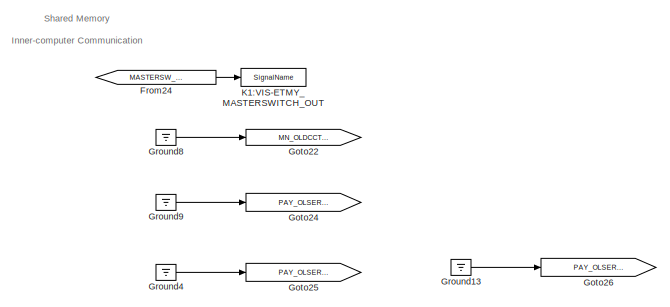
[diagram: root canvas - part 1/5, top center region]
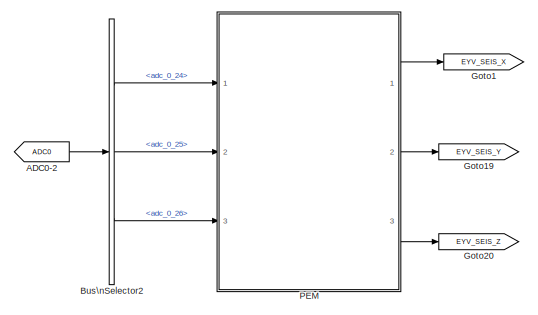
[diagram: root canvas - part 2/5, top left region]
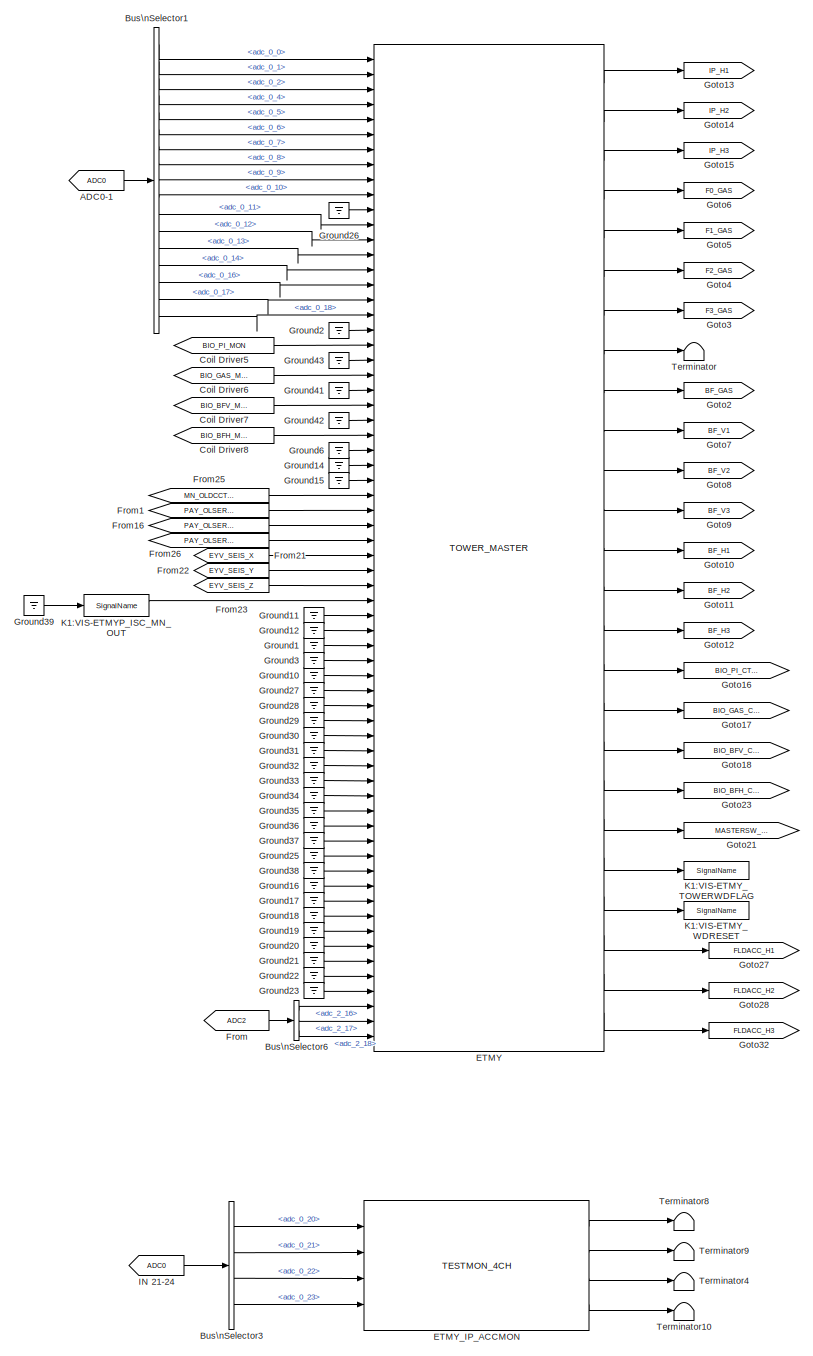
[diagram: root canvas - part 3/5, central region]
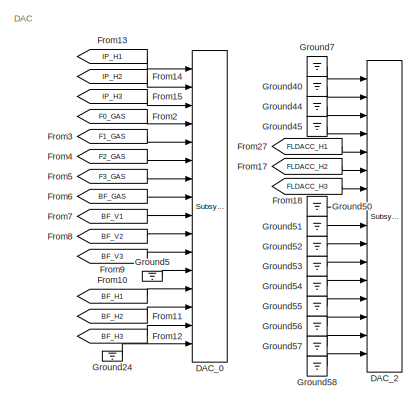
[diagram: root canvas - part 4/5, top right region]
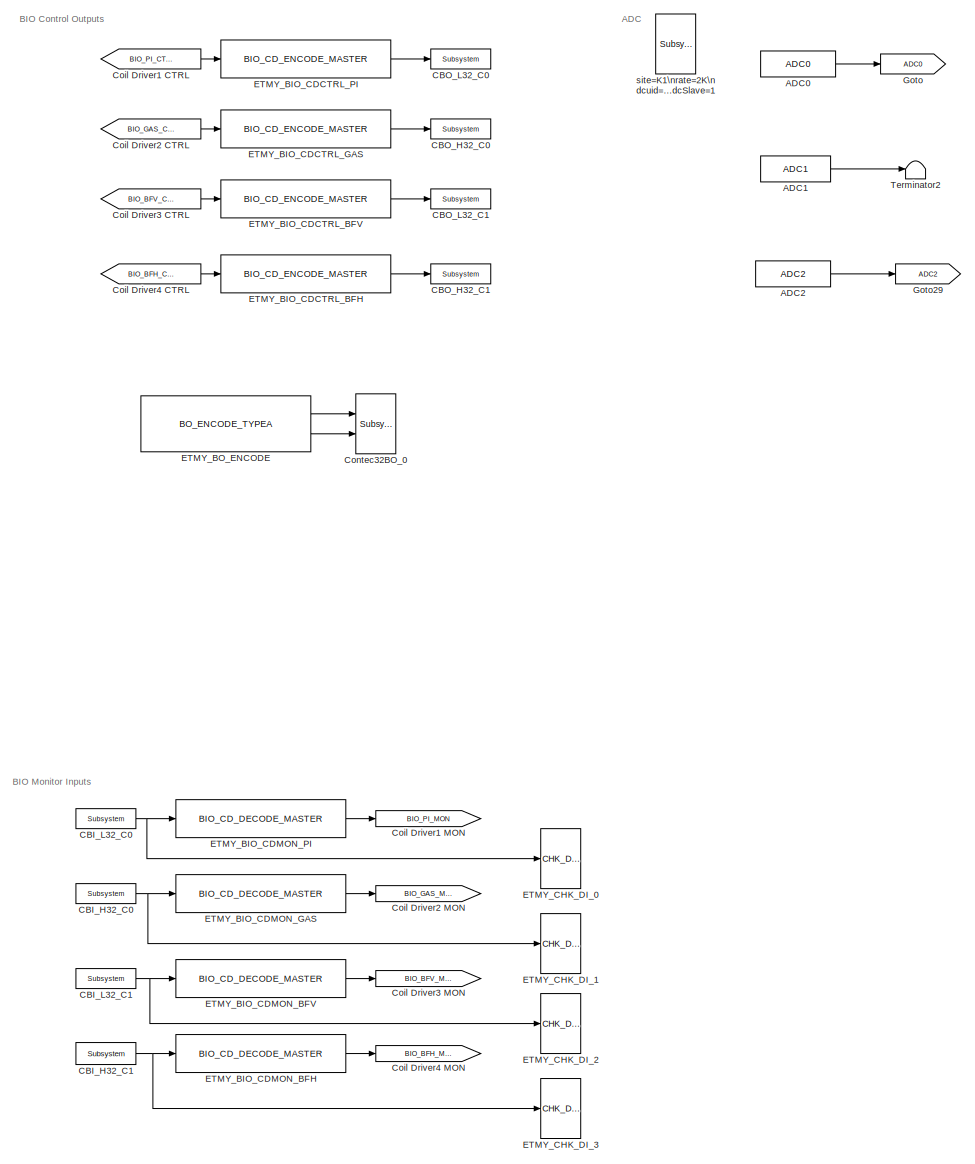
[diagram: root canvas - part 5/5, bottom right region]
MODEL k1visetmyt
KIND model
BLOCK [Reference] ADC0  REF=cdsAdcx0/ADC0
  AttributesFormatString = %<Description>\\n%<Tag>
  Description = type-GSC_16AI64SSA\ncard_num=0
  Ports = [0, 1]
  SID = 51
  SourceBlock = cdsAdcx0/ADC0
  SourceType = SubSystem
  Tag = cdsAdc
BLOCK [From] ADC0-1
  GotoTag = ADC0
  SID = 695
BLOCK [From] ADC0-2
  GotoTag = ADC0
  SID = 886
BLOCK [Reference] ADC1  REF=cdsAdcx1/ADC1
  AttributesFormatString = %<Description>\\n%<Tag>
  Description = type-GSC_16AI64SSA\ncard_num=1
  Ports = [0, 1]
  SID = 1210
  SourceBlock = cdsAdcx1/ADC1
  SourceType = SubSystem
  Tag = cdsAdc
BLOCK [Reference] ADC2  REF=cdsAdcx2/ADC2
  AttributesFormatString = %<Description>\\n%<Tag>
  Description = type-GSC_16AI64SSA\ncard_num=2
  Ports = [0, 1]
  SID = 1211
  SourceBlock = cdsAdcx2/ADC2
  SourceType = SubSystem
  Tag = cdsAdc
BLOCK [BusSelector] Bus\nSelector1
  OutputSignals = adc_0_0,adc_0_1,adc_0_2,adc_0_4,adc_0_5,adc_0_6,adc_0_7,adc_0_8,adc_0_9,adc_0_10,adc_0_11,adc_0_12,adc_0_13,adc_0_14,adc_0_16,adc_0_17,adc_0_18
  Ports = [1, 17]
  SID = 694
BLOCK [BusSelector] Bus\nSelector2
  OutputSignals = adc_0_24,adc_0_25,adc_0_26
  Ports = [1, 3]
  SID = 887
BLOCK [BusSelector] Bus\nSelector3
  OutputSignals = adc_0_20,adc_0_21,adc_0_22,adc_0_23
  Ports = [1, 4]
  SID = 286
BLOCK [BusSelector] Bus\nSelector6
  AttributesFormatString = %<Description>
  Description = ADC Selector
  OutputSignals = adc_2_16,adc_2_17,adc_2_18
  Ports = [1, 3]
  SID = 1202
BLOCK [Reference] CBI_H32_C0  REF=cdsCDI64/Subsystem
  AttributesFormatString = %<Tag>\\n%<Description>
  Description = card_num=1
  Ports = [0, 1]
  SID = 130
  SourceBlock = cdsCDI64/Subsystem
  SourceType = SubSystem
  Tag = cdsCDI64
BLOCK [Reference] CBI_H32_C1  REF=cdsCDI64/Subsystem
  AttributesFormatString = %<Tag>\\n%<Description>
  Description = card_num=3
  Ports = [0, 1]
  SID = 225
  SourceBlock = cdsCDI64/Subsystem
  SourceType = SubSystem
  Tag = cdsCDI64
BLOCK [Reference] CBI_L32_C0  REF=cdsCDI64/Subsystem
  AttributesFormatString = %<Tag>\\n%<Description>
  Description = card_num=0
  Ports = [0, 1]
  SID = 131
  SourceBlock = cdsCDI64/Subsystem
  SourceType = SubSystem
  Tag = cdsCDI64
BLOCK [Reference] CBI_L32_C1  REF=cdsCDI64/Subsystem
  AttributesFormatString = %<Tag>\\n%<Description>
  Description = card_num=2
  Ports = [0, 1]
  SID = 226
  SourceBlock = cdsCDI64/Subsystem
  SourceType = SubSystem
  Tag = cdsCDI64
BLOCK [Reference] CBO_H32_C0  REF=cdsCDO64/Subsystem
  AttributesFormatString = %<Tag>\\n%<Description>
  Description = card_num=1
  Ports = [1]
  SID = 132
  SourceBlock = cdsCDO64/Subsystem
  SourceType = SubSystem
  Tag = cdsCDO64
BLOCK [Reference] CBO_H32_C1  REF=cdsCDO64/Subsystem
  AttributesFormatString = %<Tag>\\n%<Description>
  Description = card_num=3
  Ports = [1]
  SID = 227
  SourceBlock = cdsCDO64/Subsystem
  SourceType = SubSystem
  Tag = cdsCDO64
BLOCK [Reference] CBO_L32_C0  REF=cdsCDO64/Subsystem
  AttributesFormatString = %<Tag>\\n%<Description>
  Description = card_num=0
  Ports = [1]
  SID = 133
  SourceBlock = cdsCDO64/Subsystem
  SourceType = SubSystem
  Tag = cdsCDO64
BLOCK [Reference] CBO_L32_C1  REF=cdsCDO64/Subsystem
  AttributesFormatString = %<Tag>\\n%<Description>
  Description = card_num=2
  Ports = [1]
  SID = 228
  SourceBlock = cdsCDO64/Subsystem
  SourceType = SubSystem
  Tag = cdsCDO64
BLOCK [From] Coil Driver1 CTRL
  GotoTag = BIO_PI_CTRL
  SID = 247
BLOCK [Goto] Coil Driver1 MON
  GotoTag = BIO_PI_MON
  SID = 258
BLOCK [From] Coil Driver2 CTRL
  GotoTag = BIO_GAS_CTRL
  SID = 253
BLOCK [Goto] Coil Driver2 MON
  GotoTag = BIO_GAS_MON
  SID = 259
BLOCK [From] Coil Driver3 CTRL
  GotoTag = BIO_BFV_CTRL
  SID = 254
BLOCK [Goto] Coil Driver3 MON
  GotoTag = BIO_BFV_MON
  SID = 260
BLOCK [From] Coil Driver4 CTRL
  GotoTag = BIO_BFH_CTRL
  SID = 265
BLOCK [Goto] Coil Driver4 MON
  GotoTag = BIO_BFH_MON
  SID = 261
BLOCK [From] Coil Driver5
  GotoTag = BIO_PI_MON
  SID = 266
BLOCK [From] Coil Driver6
  GotoTag = BIO_GAS_MON
  SID = 267
BLOCK [From] Coil Driver7
  GotoTag = BIO_BFV_MON
  SID = 268
BLOCK [From] Coil Driver8
  GotoTag = BIO_BFH_MON
  SID = 269
BLOCK [Reference] Contec32BO_0  REF=cdsCDO32/Subsystem
  AttributesFormatString = %<Tag>
  Description = Contec32 bit binary output module driver
  Ports = [2]
  SID = 418
  SourceBlock = cdsCDO32/Subsystem
  SourceType = SubSystem
  Tag = cdsCDO32
BLOCK [Reference] DAC_0  REF=dac/Subsystem  (lib defined in slx_40ef132df75b, slx_b7657ccccc5b, +4 more)
  AttributesFormatString = %<Description>
  Description = type=GSC_16AO16,\ncard_num=0
  Ports = [16]
  SID = 5
  SourceBlock = dac/Subsystem
  SourceType = SubSystem
BLOCK [Reference] DAC_2  REF=dac/Subsystem  (lib defined in slx_40ef132df75b, slx_b7657ccccc5b, +4 more)
  AttributesFormatString = %<Description>
  Description = type=GSC_16AO16,\ncard_num=2
  Ports = [16]
  SID = 1205
  SourceBlock = dac/Subsystem
  SourceType = SubSystem
BLOCK [Reference] ETMY  REF=TOWER_MASTER/TOWER_MASTER
  Ports = [66, 25]
  SID = 1161
  SourceBlock = TOWER_MASTER/TOWER_MASTER
  SourceType = SubSystem
BLOCK [Reference] ETMY_BIO_CDCTRL_BFH  REF=BIO_CD_ENCODE_MASTER/BIO_CD_ENCODE_MASTER
  Ports = [1, 1]
  SID = 244
  SourceBlock = BIO_CD_ENCODE_MASTER/BIO_CD_ENCODE_MASTER
  SourceType = SubSystem
BLOCK [Reference] ETMY_BIO_CDCTRL_BFV  REF=BIO_CD_ENCODE_MASTER/BIO_CD_ENCODE_MASTER
  Ports = [1, 1]
  SID = 243
  SourceBlock = BIO_CD_ENCODE_MASTER/BIO_CD_ENCODE_MASTER
  SourceType = SubSystem
BLOCK [Reference] ETMY_BIO_CDCTRL_GAS  REF=BIO_CD_ENCODE_MASTER/BIO_CD_ENCODE_MASTER
  Ports = [1, 1]
  SID = 242
  SourceBlock = BIO_CD_ENCODE_MASTER/BIO_CD_ENCODE_MASTER
  SourceType = SubSystem
BLOCK [Reference] ETMY_BIO_CDCTRL_PI  REF=BIO_CD_ENCODE_MASTER/BIO_CD_ENCODE_MASTER
  Ports = [1, 1]
  SID = 240
  SourceBlock = BIO_CD_ENCODE_MASTER/BIO_CD_ENCODE_MASTER
  SourceType = SubSystem
BLOCK [Reference] ETMY_BIO_CDMON_BFH  REF=BIO_CD_DECODE_MASTER/BIO_CD_DECODE_MASTER
  Ports = [1, 1]
  SID = 239
  SourceBlock = BIO_CD_DECODE_MASTER/BIO_CD_DECODE_MASTER
  SourceType = SubSystem
BLOCK [Reference] ETMY_BIO_CDMON_BFV  REF=BIO_CD_DECODE_MASTER/BIO_CD_DECODE_MASTER
  Ports = [1, 1]
  SID = 238
  SourceBlock = BIO_CD_DECODE_MASTER/BIO_CD_DECODE_MASTER
  SourceType = SubSystem
BLOCK [Reference] ETMY_BIO_CDMON_GAS  REF=BIO_CD_DECODE_MASTER/BIO_CD_DECODE_MASTER
  Ports = [1, 1]
  SID = 237
  SourceBlock = BIO_CD_DECODE_MASTER/BIO_CD_DECODE_MASTER
  SourceType = SubSystem
BLOCK [Reference] ETMY_BIO_CDMON_PI  REF=BIO_CD_DECODE_MASTER/BIO_CD_DECODE_MASTER
  Ports = [1, 1]
  SID = 235
  SourceBlock = BIO_CD_DECODE_MASTER/BIO_CD_DECODE_MASTER
  SourceType = SubSystem
BLOCK [Reference] ETMY_BO_ENCODE  REF=BO_TYPEA_MASTER/BO_ENCODE_TYPEA
  Ports = [0, 2]
  SID = 489
  SourceBlock = BO_TYPEA_MASTER/BO_ENCODE_TYPEA
  SourceType = SubSystem
BLOCK [Reference] ETMY_CHK_DI_0  REF=CHK_DIO/CHK_DI_0
  Ports = [1]
  SID = 683
  SourceBlock = CHK_DIO/CHK_DI_0
  SourceType = SubSystem
BLOCK [Reference] ETMY_CHK_DI_1  REF=CHK_DIO/CHK_DI_0
  Ports = [1]
  SID = 684
  SourceBlock = CHK_DIO/CHK_DI_0
  SourceType = SubSystem
BLOCK [Reference] ETMY_CHK_DI_2  REF=CHK_DIO/CHK_DI_0
  Ports = [1]
  SID = 685
  SourceBlock = CHK_DIO/CHK_DI_0
  SourceType = SubSystem
BLOCK [Reference] ETMY_CHK_DI_3  REF=CHK_DIO/CHK_DI_0
  Ports = [1]
  SID = 686
  SourceBlock = CHK_DIO/CHK_DI_0
  SourceType = SubSystem
BLOCK [Reference] ETMY_IP_ACCMON  REF=TESTMON_4CH_MASTER/TESTMON_4CH
  Ports = [4, 4]
  SID = 285
  SourceBlock = TESTMON_4CH_MASTER/TESTMON_4CH
  SourceType = SubSystem
BLOCK [From] From
  GotoTag = ADC2
  SID = 1203
BLOCK [From] From1
  GotoTag = PAY_OLSERVO_BFL
  SID = 779
BLOCK [From] From10
  GotoTag = BF_H1
  SID = 215
BLOCK [From] From11
  GotoTag = BF_H2
  SID = 216
BLOCK [From] From12
  GotoTag = BF_H3
  SID = 217
BLOCK [From] From13
  GotoTag = IP_H1
  SID = 221
BLOCK [From] From14
  GotoTag = IP_H2
  SID = 222
BLOCK [From] From15
  GotoTag = IP_H3
  SID = 223
BLOCK [From] From16
  GotoTag = PAY_OLSERVO_BFT
  SID = 780
BLOCK [From] From17
  GotoTag = FLDACC_H2
  SID = 1183
BLOCK [From] From18
  GotoTag = FLDACC_H3
  SID = 1184
BLOCK [From] From2
  GotoTag = F0_GAS
  SID = 152
BLOCK [From] From21
  GotoTag = EYV_SEIS_X
  SID = 765
BLOCK [From] From22
  GotoTag = EYV_SEIS_Y
  SID = 766
BLOCK [From] From23
  GotoTag = EYV_SEIS_Z
  SID = 767
BLOCK [From] From24
  GotoTag = MASTERSW_CTRL
  SID = 768
BLOCK [From] From25
  GotoTag = MN_OLDCCTRL_Y
  SID = 769
BLOCK [From] From26
  GotoTag = PAY_OLSERVO_BFY
  SID = 770
BLOCK [From] From27
  GotoTag = FLDACC_H1
  SID = 1185
BLOCK [From] From3
  GotoTag = F1_GAS
  SID = 153
BLOCK [From] From4
  GotoTag = F2_GAS
  SID = 154
BLOCK [From] From5
  GotoTag = F3_GAS
  SID = 155
BLOCK [From] From6
  GotoTag = BF_GAS
  SID = 156
BLOCK [From] From7
  GotoTag = BF_V1
  SID = 212
BLOCK [From] From8
  GotoTag = BF_V2
  SID = 213
BLOCK [From] From9
  GotoTag = BF_V3
  SID = 214
BLOCK [Goto] Goto
  GotoTag = ADC0
  SID = 125
BLOCK [Goto] Goto1
  GotoTag = EYV_SEIS_X
  SID = 888
BLOCK [Goto] Goto10
  GotoTag = BF_H1
  SID = 209
BLOCK [Goto] Goto11
  GotoTag = BF_H2
  SID = 210
BLOCK [Goto] Goto12
  GotoTag = BF_H3
  SID = 211
BLOCK [Goto] Goto13
  GotoTag = IP_H1
  SID = 218
BLOCK [Goto] Goto14
  GotoTag = IP_H2
  SID = 219
BLOCK [Goto] Goto15
  GotoTag = IP_H3
  SID = 220
BLOCK [Goto] Goto16
  GotoTag = BIO_PI_CTRL
  SID = 248
BLOCK [Goto] Goto17
  GotoTag = BIO_GAS_CTRL
  SID = 251
BLOCK [Goto] Goto18
  GotoTag = BIO_BFV_CTRL
  SID = 252
BLOCK [Goto] Goto19
  GotoTag = EYV_SEIS_Y
  SID = 889
BLOCK [Goto] Goto2
  GotoTag = BF_GAS
  SID = 177
BLOCK [Goto] Goto20
  GotoTag = EYV_SEIS_Z
  SID = 890
BLOCK [Goto] Goto21
  GotoTag = MASTERSW_CTRL
  SID = 735
BLOCK [Goto] Goto22
  GotoTag = MN_OLDCCTRL_Y
  SID = 736
BLOCK [Goto] Goto23
  GotoTag = BIO_BFH_CTRL
  SID = 264
BLOCK [Goto] Goto24
  GotoTag = PAY_OLSERVO_BFY
  SID = 737
BLOCK [Goto] Goto25
  GotoTag = PAY_OLSERVO_BFL
  SID = 771
BLOCK [Goto] Goto26
  GotoTag = PAY_OLSERVO_BFT
  SID = 775
BLOCK [Goto] Goto27
  GotoTag = FLDACC_H1
  SID = 1199
BLOCK [Goto] Goto28
  GotoTag = FLDACC_H2
  SID = 1200
BLOCK [Goto] Goto29
  GotoTag = ADC2
  SID = 1208
BLOCK [Goto] Goto3
  GotoTag = F3_GAS
  SID = 148
BLOCK [Goto] Goto32
  GotoTag = FLDACC_H3
  SID = 1201
BLOCK [Goto] Goto4
  GotoTag = F2_GAS
  SID = 149
BLOCK [Goto] Goto5
  GotoTag = F1_GAS
  SID = 150
BLOCK [Goto] Goto6
  GotoTag = F0_GAS
  SID = 151
BLOCK [Goto] Goto7
  GotoTag = BF_V1
  SID = 206
BLOCK [Goto] Goto8
  GotoTag = BF_V2
  SID = 207
BLOCK [Goto] Goto9
  GotoTag = BF_V3
  SID = 208
BLOCK [Ground] Ground1
  SID = 793
BLOCK [Ground] Ground10
  SID = 1167
BLOCK [Ground] Ground11
  SID = 1151
BLOCK [Ground] Ground12
  SID = 1152
BLOCK [Ground] Ground13
  SID = 776
BLOCK [Ground] Ground14
  SID = 783
BLOCK [Ground] Ground15
  SID = 786
BLOCK [Ground] Ground16
  SID = 1153
BLOCK [Ground] Ground17
  SID = 1154
BLOCK [Ground] Ground18
  SID = 1155
BLOCK [Ground] Ground19
  SID = 1156
BLOCK [Ground] Ground2
  SID = 731
BLOCK [Ground] Ground20
  SID = 1157
BLOCK [Ground] Ground21
  SID = 1158
BLOCK [Ground] Ground22
  SID = 1159
BLOCK [Ground] Ground23
  SID = 1160
BLOCK [Ground] Ground24
  SID = 304
BLOCK [Ground] Ground25
  SID = 1163
BLOCK [Ground] Ground26
  SID = 1164
BLOCK [Ground] Ground27
  SID = 1168
BLOCK [Ground] Ground28
  SID = 1169
BLOCK [Ground] Ground29
  SID = 1170
BLOCK [Ground] Ground3
  SID = 1166
BLOCK [Ground] Ground30
  SID = 1171
BLOCK [Ground] Ground31
  SID = 1172
BLOCK [Ground] Ground32
  SID = 1173
BLOCK [Ground] Ground33
  SID = 1174
BLOCK [Ground] Ground34
  SID = 1175
BLOCK [Ground] Ground35
  SID = 1176
BLOCK [Ground] Ground36
  SID = 1177
BLOCK [Ground] Ground37
  SID = 1178
BLOCK [Ground] Ground38
  SID = 1179
BLOCK [Ground] Ground39
  SID = 1180
BLOCK [Ground] Ground4
  SID = 772
BLOCK [Ground] Ground40
  SID = 1187
BLOCK [Ground] Ground41
  SID = 405
BLOCK [Ground] Ground42
  SID = 406
BLOCK [Ground] Ground43
  SID = 407
BLOCK [Ground] Ground44
  SID = 1188
BLOCK [Ground] Ground45
  SID = 1189
BLOCK [Ground] Ground5
  SID = 303
BLOCK [Ground] Ground50
  SID = 1190
BLOCK [Ground] Ground51
  SID = 1191
BLOCK [Ground] Ground52
  SID = 1192
BLOCK [Ground] Ground53
  SID = 1193
BLOCK [Ground] Ground54
  SID = 1194
BLOCK [Ground] Ground55
  SID = 1195
BLOCK [Ground] Ground56
  SID = 1196
BLOCK [Ground] Ground57
  SID = 1197
BLOCK [Ground] Ground58
  SID = 1198
BLOCK [Ground] Ground6
  SID = 795
BLOCK [Ground] Ground7
  SID = 1186
BLOCK [Ground] Ground8
  SID = 742
BLOCK [Ground] Ground9
  SID = 743
BLOCK [From] IN 21-24
  GotoTag = ADC0
  SID = 287
BLOCK [Reference] K1:VIS-ETMYP_ISC_MN_OUT  REF=cdsIPCx/SignalName
  AttributesFormatString = %<Tag>
  Description = Inter-Process Communication via Shared memory.
  Ports = [1, 2]
  SID = 1181
  SourceBlock = cdsIPCx/SignalName
  SourceType = SubSystem
  Tag = cdsIPCx_SHMEM
BLOCK [Reference] K1:VIS-ETMY_MASTERSWITCH_OUT  REF=cdsIPCx/SignalName
  AttributesFormatString = %<Tag>
  Description = Inter-Process Communication via Shared memory.
  Ports = [1, 2]
  SID = 747
  SourceBlock = cdsIPCx/SignalName
  SourceType = SubSystem
  Tag = cdsIPCx_SHMEM
BLOCK [Reference] K1:VIS-ETMY_TOWERWDFLAG  REF=cdsIPCx/SignalName
  AttributesFormatString = %<Tag>
  Description = Inter-Process Communication via Shared memory.
  Ports = [1, 2]
  SID = 712
  SourceBlock = cdsIPCx/SignalName
  SourceType = SubSystem
  Tag = cdsIPCx_SHMEM
BLOCK [Reference] K1:VIS-ETMY_WDRESET  REF=cdsIPCx/SignalName
  AttributesFormatString = %<Tag>
  Description = Inter-Process Communication via Shared memory.
  Ports = [1, 2]
  SID = 727
  SourceBlock = cdsIPCx/SignalName
  SourceType = SubSystem
  Tag = cdsIPCx_SHMEM
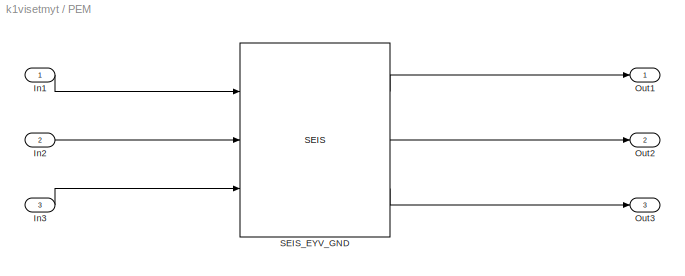
BLOCK [SubSystem] PEM
  AttributesFormatString = %<Tag>
  Ports = [3, 3]
  RequestExecContextInheritance = off
  SID = 1075
  Tag = top_names
  Variant = off
BLOCK [Inport] PEM/In1
  IconDisplay = Port number
  SID = 1076
BLOCK [Inport] PEM/In2
  IconDisplay = Port number
  Port = 2
  SID = 1077
BLOCK [Inport] PEM/In3
  IconDisplay = Port number
  Port = 3
  SID = 1078
BLOCK [Outport] PEM/Out1
  IconDisplay = Port number
  SID = 1083
BLOCK [Outport] PEM/Out2
  IconDisplay = Port number
  Port = 2
  SID = 1084
BLOCK [Outport] PEM/Out3
  IconDisplay = Port number
  Port = 3
  SID = 1085
BLOCK [Reference] PEM/SEIS_EYV_GND  REF=seis/SEIS
  Ports = [3, 3]
  SID = 1082
  SourceBlock = seis/SEIS
  SourceType = SubSystem
BLOCK [Terminator] Terminator
  SID = 1165
BLOCK [Terminator] Terminator10
  SID = 293
BLOCK [Terminator] Terminator2
  SID = 1209
BLOCK [Terminator] Terminator4
  SID = 290
BLOCK [Terminator] Terminator8
  SID = 291
BLOCK [Terminator] Terminator9
  SID = 292
BLOCK [Reference] site=K1\nrate=2K\ndcuid=107\nhost=k1ey1\nspecific_cpu=2\nadcSlave=1  REF=cdsParameters/Subsystem
  AttributesFormatString = %<Tag>
  Description = Purpose:                                                                                                                                                                                                                                \nProvide system parameters to the FE code generator to properly configure the generated EPICS names, rep rate of the FE controller, and the Data Acquisition node ID fo...<+2934ch>
  Ports = []
  SID = 730
  SourceBlock = cdsParameters/Subsystem
  SourceType = SubSystem
  Tag = cdsParameters
ANNOTATION (root): \n \n BIO Control Outputs
ANNOTATION (root): \n \n ADC
ANNOTATION (root): \n \n BIO Monitor Inputs
ANNOTATION (root): \n \n DAC
ANNOTATION (root): \n \n Shared Memory \n Inner-computer Communication
LINE ADC0-1:1 -> Bus\nSelector1:1
LINE ADC0-2:1 -> Bus\nSelector2:1
LINE ADC0:1 -> Goto:1
LINE ADC1:1 -> Terminator2:1
LINE ADC2:1 -> Goto29:1
LINE Bus\nSelector1:1 -> ETMY:1
LINE Bus\nSelector1:10 -> ETMY:10
LINE Bus\nSelector1:11 -> ETMY:12
LINE Bus\nSelector1:12 -> ETMY:13
LINE Bus\nSelector1:13 -> ETMY:14
LINE Bus\nSelector1:14 -> ETMY:15
LINE Bus\nSelector1:15 -> ETMY:16
LINE Bus\nSelector1:16 -> ETMY:17
LINE Bus\nSelector1:17 -> ETMY:18
LINE Bus\nSelector1:2 -> ETMY:2
LINE Bus\nSelector1:3 -> ETMY:3
LINE Bus\nSelector1:4 -> ETMY:4
LINE Bus\nSelector1:5 -> ETMY:5
LINE Bus\nSelector1:6 -> ETMY:6
LINE Bus\nSelector1:7 -> ETMY:7
LINE Bus\nSelector1:8 -> ETMY:8
LINE Bus\nSelector1:9 -> ETMY:9
LINE Bus\nSelector2:1 -> PEM:1
LINE Bus\nSelector2:2 -> PEM:2
LINE Bus\nSelector2:3 -> PEM:3
LINE Bus\nSelector3:1 -> ETMY_IP_ACCMON:1
LINE Bus\nSelector3:2 -> ETMY_IP_ACCMON:2
LINE Bus\nSelector3:3 -> ETMY_IP_ACCMON:3
LINE Bus\nSelector3:4 -> ETMY_IP_ACCMON:4
LINE Bus\nSelector6:1 -> ETMY:64
LINE Bus\nSelector6:2 -> ETMY:65
LINE Bus\nSelector6:3 -> ETMY:66
NET CBI_H32_C0:1 -> ETMY_BIO_CDMON_GAS:1, ETMY_CHK_DI_1:1
NET CBI_H32_C1:1 -> ETMY_BIO_CDMON_BFH:1, ETMY_CHK_DI_3:1
NET CBI_L32_C0:1 -> ETMY_BIO_CDMON_PI:1, ETMY_CHK_DI_0:1
NET CBI_L32_C1:1 -> ETMY_BIO_CDMON_BFV:1, ETMY_CHK_DI_2:1
LINE Coil Driver1 CTRL:1 -> ETMY_BIO_CDCTRL_PI:1
LINE Coil Driver2 CTRL:1 -> ETMY_BIO_CDCTRL_GAS:1
LINE Coil Driver3 CTRL:1 -> ETMY_BIO_CDCTRL_BFV:1
LINE Coil Driver4 CTRL:1 -> ETMY_BIO_CDCTRL_BFH:1
LINE Coil Driver5:1 -> ETMY:20
LINE Coil Driver6:1 -> ETMY:22
LINE Coil Driver7:1 -> ETMY:24
LINE Coil Driver8:1 -> ETMY:26
LINE ETMY:1 -> Goto13:1
LINE ETMY:10 -> Goto7:1
LINE ETMY:11 -> Goto8:1
LINE ETMY:12 -> Goto9:1
LINE ETMY:13 -> Goto10:1
LINE ETMY:14 -> Goto11:1
LINE ETMY:15 -> Goto12:1
LINE ETMY:16 -> Goto16:1
LINE ETMY:17 -> Goto17:1
LINE ETMY:18 -> Goto18:1
LINE ETMY:19 -> Goto23:1
LINE ETMY:2 -> Goto14:1
LINE ETMY:20 -> Goto21:1
LINE ETMY:21 -> K1:VIS-ETMY_TOWERWDFLAG:1
LINE ETMY:22 -> K1:VIS-ETMY_WDRESET:1
LINE ETMY:23 -> Goto27:1
LINE ETMY:24 -> Goto28:1
LINE ETMY:25 -> Goto32:1
LINE ETMY:3 -> Goto15:1
LINE ETMY:4 -> Goto6:1
LINE ETMY:5 -> Goto5:1
LINE ETMY:6 -> Goto4:1
LINE ETMY:7 -> Goto3:1
LINE ETMY:8 -> Terminator:1
LINE ETMY:9 -> Goto2:1
LINE ETMY_BIO_CDCTRL_BFH:1 -> CBO_H32_C1:1
LINE ETMY_BIO_CDCTRL_BFV:1 -> CBO_L32_C1:1
LINE ETMY_BIO_CDCTRL_GAS:1 -> CBO_H32_C0:1
LINE ETMY_BIO_CDCTRL_PI:1 -> CBO_L32_C0:1
LINE ETMY_BIO_CDMON_BFH:1 -> Coil Driver4 MON:1
LINE ETMY_BIO_CDMON_BFV:1 -> Coil Driver3 MON:1
LINE ETMY_BIO_CDMON_GAS:1 -> Coil Driver2 MON:1
LINE ETMY_BIO_CDMON_PI:1 -> Coil Driver1 MON:1
LINE ETMY_BO_ENCODE:1 -> Contec32BO_0:1
LINE ETMY_BO_ENCODE:2 -> Contec32BO_0:2
LINE ETMY_IP_ACCMON:1 -> Terminator8:1
LINE ETMY_IP_ACCMON:2 -> Terminator9:1
LINE ETMY_IP_ACCMON:3 -> Terminator4:1
LINE ETMY_IP_ACCMON:4 -> Terminator10:1
LINE From10:1 -> DAC_0:13
LINE From11:1 -> DAC_0:14
LINE From12:1 -> DAC_0:15
LINE From13:1 -> DAC_0:1
LINE From14:1 -> DAC_0:2
LINE From15:1 -> DAC_0:3
LINE From16:1 -> ETMY:32
LINE From17:1 -> DAC_2:6
LINE From18:1 -> DAC_2:7
LINE From1:1 -> ETMY:31
LINE From21:1 -> ETMY:34
LINE From22:1 -> ETMY:35
LINE From23:1 -> ETMY:36
LINE From24:1 -> K1:VIS-ETMY_MASTERSWITCH_OUT:1
LINE From25:1 -> ETMY:30
LINE From26:1 -> ETMY:33
LINE From27:1 -> DAC_2:5
LINE From2:1 -> DAC_0:4
LINE From3:1 -> DAC_0:5
LINE From4:1 -> DAC_0:6
LINE From5:1 -> DAC_0:7
LINE From6:1 -> DAC_0:8
LINE From7:1 -> DAC_0:9
LINE From8:1 -> DAC_0:10
LINE From9:1 -> DAC_0:11
LINE From:1 -> Bus\nSelector6:1
LINE Ground10:1 -> ETMY:42
LINE Ground11:1 -> ETMY:38
LINE Ground12:1 -> ETMY:39
LINE Ground13:1 -> Goto26:1
LINE Ground14:1 -> ETMY:28
LINE Ground15:1 -> ETMY:29
LINE Ground16:1 -> ETMY:56
LINE Ground17:1 -> ETMY:57
LINE Ground18:1 -> ETMY:58
LINE Ground19:1 -> ETMY:59
LINE Ground1:1 -> ETMY:40
LINE Ground20:1 -> ETMY:60
LINE Ground21:1 -> ETMY:61
LINE Ground22:1 -> ETMY:62
LINE Ground23:1 -> ETMY:63
LINE Ground24:1 -> DAC_0:16
LINE Ground25:1 -> ETMY:54
LINE Ground26:1 -> ETMY:11
LINE Ground27:1 -> ETMY:43
LINE Ground28:1 -> ETMY:44
LINE Ground29:1 -> ETMY:45
LINE Ground2:1 -> ETMY:19
LINE Ground30:1 -> ETMY:46
LINE Ground31:1 -> ETMY:47
LINE Ground32:1 -> ETMY:48
LINE Ground33:1 -> ETMY:49
LINE Ground34:1 -> ETMY:50
LINE Ground35:1 -> ETMY:51
LINE Ground36:1 -> ETMY:52
LINE Ground37:1 -> ETMY:53
LINE Ground38:1 -> ETMY:55
LINE Ground39:1 -> K1:VIS-ETMYP_ISC_MN_OUT:1
LINE Ground3:1 -> ETMY:41
LINE Ground40:1 -> DAC_2:2
LINE Ground41:1 -> ETMY:23
LINE Ground42:1 -> ETMY:25
LINE Ground43:1 -> ETMY:21
LINE Ground44:1 -> DAC_2:3
LINE Ground45:1 -> DAC_2:4
LINE Ground4:1 -> Goto25:1
LINE Ground50:1 -> DAC_2:8
LINE Ground51:1 -> DAC_2:9
LINE Ground52:1 -> DAC_2:10
LINE Ground53:1 -> DAC_2:11
LINE Ground54:1 -> DAC_2:12
LINE Ground55:1 -> DAC_2:13
LINE Ground56:1 -> DAC_2:14
LINE Ground57:1 -> DAC_2:15
LINE Ground58:1 -> DAC_2:16
LINE Ground5:1 -> DAC_0:12
LINE Ground6:1 -> ETMY:27
LINE Ground7:1 -> DAC_2:1
LINE Ground8:1 -> Goto22:1
LINE Ground9:1 -> Goto24:1
LINE IN 21-24:1 -> Bus\nSelector3:1
LINE K1:VIS-ETMYP_ISC_MN_OUT:1 -> ETMY:37
LINE PEM/In1:1 -> PEM/SEIS_EYV_GND:1
LINE PEM/In2:1 -> PEM/SEIS_EYV_GND:2
LINE PEM/In3:1 -> PEM/SEIS_EYV_GND:3
LINE PEM/SEIS_EYV_GND:1 -> PEM/Out1:1
LINE PEM/SEIS_EYV_GND:2 -> PEM/Out2:1
LINE PEM/SEIS_EYV_GND:3 -> PEM/Out3:1
LINE PEM:1 -> Goto1:1
LINE PEM:2 -> Goto19:1
LINE PEM:3 -> Goto20:1
note: NET lines group one-source signal fan-out (src -> all destinations, sorted); 1:1 wires keep LINE
